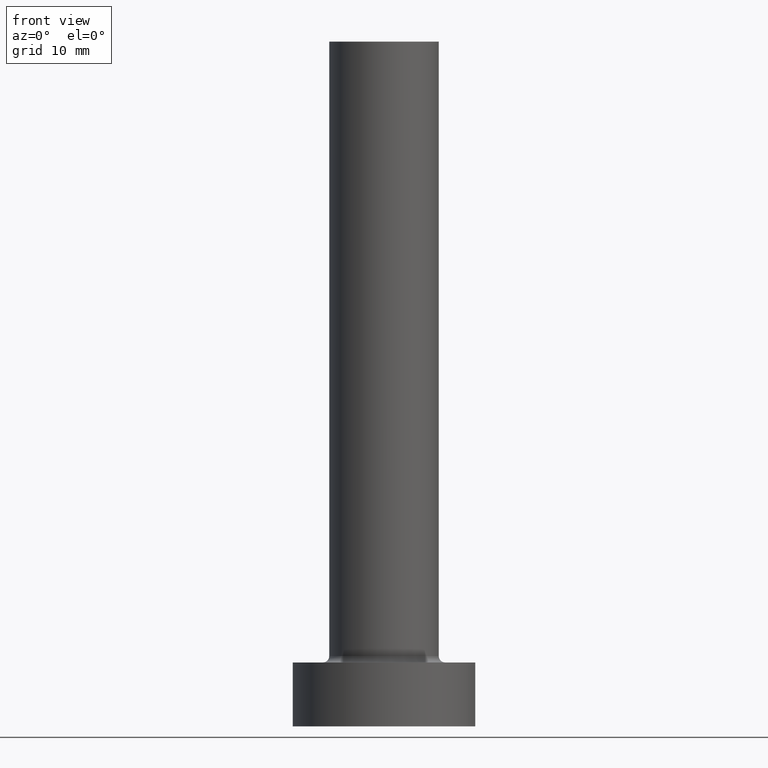
[diagram: clean part render]
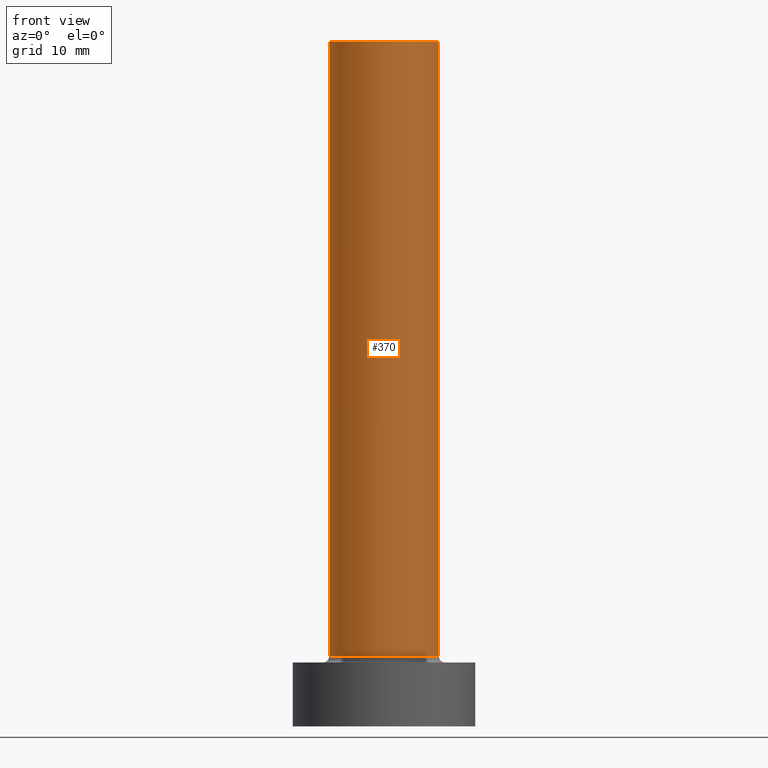
[diagram: same view with one face highlighted and labeled with its STEP entity id]
A machine part, front view. The second image highlights one B-rep face of the part: STEP entity #370.
In plain terms, the highlighted cylindrical surface (partial cylindrical patch) has radius 6 mm, axis along (-0, -0, -1).
Its self-contained STEP definition (entity closure, byte-faithful):
#35 = VERTEX_POINT ( 'NONE', #107 ) ;
#47 = AXIS2_PLACEMENT_3D ( 'NONE', #190, #331, #155 ) ;
#49 = CARTESIAN_POINT ( 'NONE',  ( -6.000000000000000888, 0.000000000000000000, 7.699999999999998401 ) ) ;
#52 = DIRECTION ( 'NONE',  ( 0.000000000000000000, 0.000000000000000000, 1.000000000000000000 ) ) ;
#55 = CARTESIAN_POINT ( 'NONE',  ( -6.000000000000000888, 0.000000000000000000, 75.00000000000001421 ) ) ;
#95 = DIRECTION ( 'NONE',  ( -0.000000000000000000, -0.000000000000000000, -1.000000000000000000 ) ) ;
#107 = CARTESIAN_POINT ( 'NONE',  ( 6.000000000000000888, 7.347880794884120722E-16, 75.00000000000001421 ) ) ;
#111 = DIRECTION ( 'NONE',  ( -1.000000000000000000, 0.000000000000000000, 0.000000000000000000 ) ) ;
#115 = AXIS2_PLACEMENT_3D ( 'NONE', #162, #429, #111 ) ;
#118 = EDGE_CURVE ( 'NONE', #150, #288, #306, .T. ) ;
#150 = VERTEX_POINT ( 'NONE', #55 ) ;
#155 = DIRECTION ( 'NONE',  ( 1.000000000000000000, 0.000000000000000000, 0.000000000000000000 ) ) ;
#162 = CARTESIAN_POINT ( 'NONE',  ( 0.000000000000000000, 0.000000000000000000, 75.00000000000001421 ) ) ;
#164 = CYLINDRICAL_SURFACE ( 'NONE', #115, 6.000000000000000888 ) ;
#181 = EDGE_CURVE ( 'NONE', #288, #328, #256, .T. ) ;
#182 = ORIENTED_EDGE ( 'NONE', *, *, #228, .F. ) ;
#190 = CARTESIAN_POINT ( 'NONE',  ( 0.000000000000000000, 0.000000000000000000, 7.699999999999998401 ) ) ;
#219 = FACE_OUTER_BOUND ( 'NONE', #396, .T. ) ;
#228 = EDGE_CURVE ( 'NONE', #150, #35, #439, .T. ) ;
#235 = AXIS2_PLACEMENT_3D ( 'NONE', #373, #52, #406 ) ;
#256 = CIRCLE ( 'NONE', #47, 6.000000000000000888 ) ;
#288 = VERTEX_POINT ( 'NONE', #49 ) ;
#290 = CARTESIAN_POINT ( 'NONE',  ( 6.000000000000000888, 7.347880794884120722E-16, 75.00000000000001421 ) ) ;
#301 = ORIENTED_EDGE ( 'NONE', *, *, #339, .F. ) ;
#306 = LINE ( 'NONE', #408, #385 ) ;
#318 = ORIENTED_EDGE ( 'NONE', *, *, #181, .T. ) ;
#324 = LINE ( 'NONE', #290, #457 ) ;
#328 = VERTEX_POINT ( 'NONE', #346 ) ;
#331 = DIRECTION ( 'NONE',  ( 0.000000000000000000, 0.000000000000000000, 1.000000000000000000 ) ) ;
#339 = EDGE_CURVE ( 'NONE', #35, #328, #324, .T. ) ;
#346 = CARTESIAN_POINT ( 'NONE',  ( 6.000000000000000888, 7.347880794884120722E-16, 7.699999999999998401 ) ) ;
#370 = ADVANCED_FACE ( 'NONE', ( #219 ), #164, .T. ) ;
#373 = CARTESIAN_POINT ( 'NONE',  ( 0.000000000000000000, 0.000000000000000000, 75.00000000000001421 ) ) ;
#385 = VECTOR ( 'NONE', #95, 1000.000000000000000 ) ;
#396 = EDGE_LOOP ( 'NONE', ( #301, #182, #398, #318 ) ) ;
#398 = ORIENTED_EDGE ( 'NONE', *, *, #118, .T. ) ;
#406 = DIRECTION ( 'NONE',  ( 1.000000000000000000, 0.000000000000000000, 0.000000000000000000 ) ) ;
#408 = CARTESIAN_POINT ( 'NONE',  ( -6.000000000000000888, 0.000000000000000000, 75.00000000000001421 ) ) ;
#429 = DIRECTION ( 'NONE',  ( -0.000000000000000000, -0.000000000000000000, -1.000000000000000000 ) ) ;
#430 = DIRECTION ( 'NONE',  ( -0.000000000000000000, -0.000000000000000000, -1.000000000000000000 ) ) ;
#439 = CIRCLE ( 'NONE', #235, 6.000000000000000888 ) ;
#457 = VECTOR ( 'NONE', #430, 1000.000000000000000 ) ;